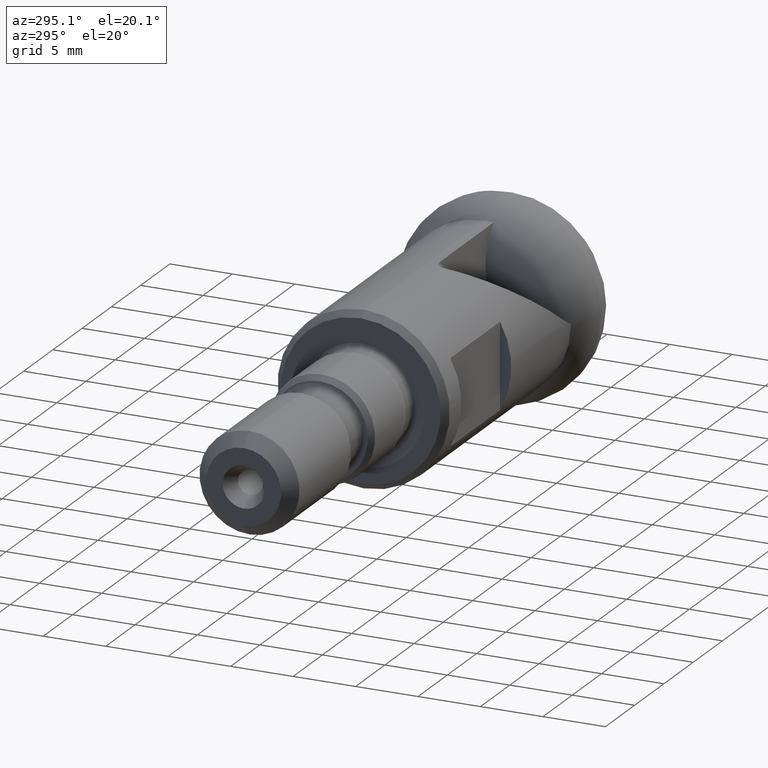
[diagram: clean part render]
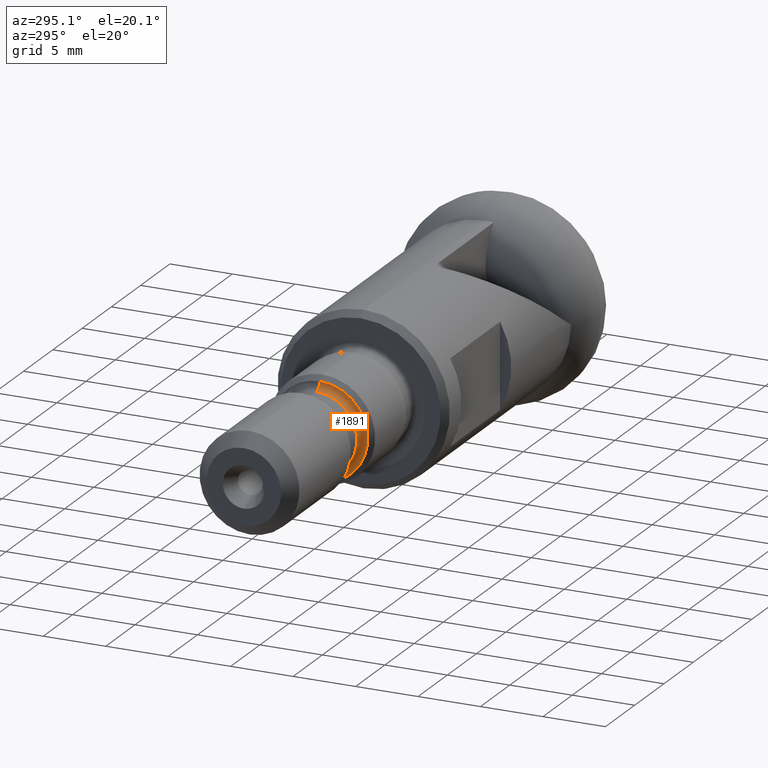
[diagram: same view with one face highlighted and labeled with its STEP entity id]
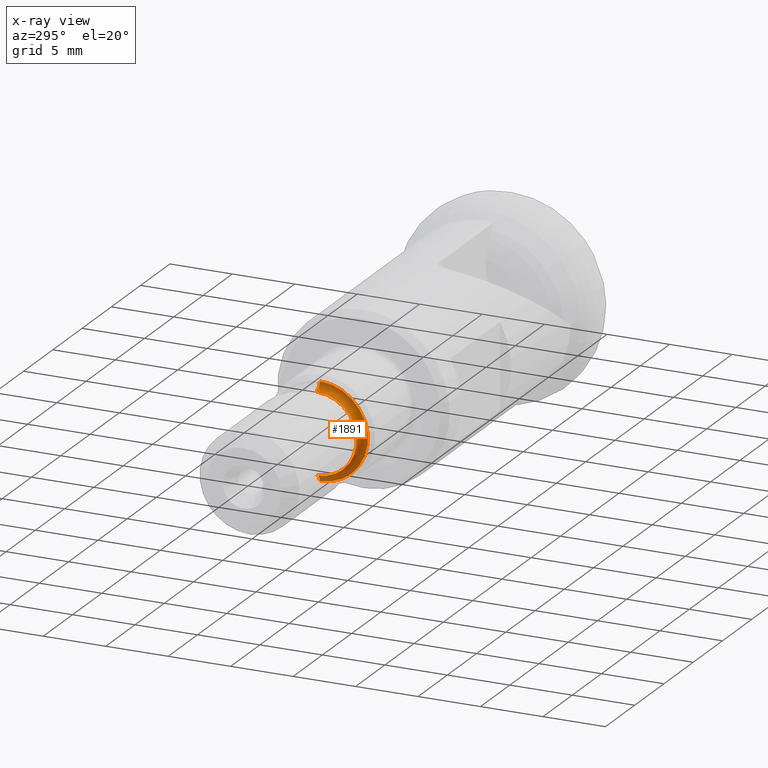
[diagram: x-ray of the same camera — body ghosted, the highlighted face saturated]
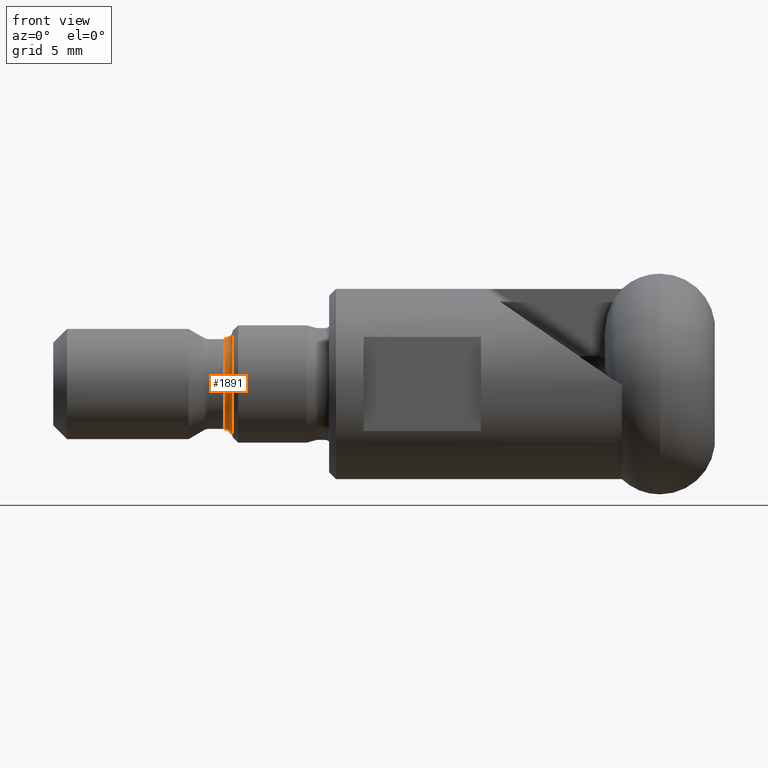
[diagram: same view with one face highlighted and labeled with its STEP entity id]
A machine part, auxiliary view. The second image highlights one B-rep face of the part: STEP entity #1891.
The next image is the same camera in x-ray: the body ghosted, the highlighted face saturated — about 7% of this face is hidden behind the body in this view.
A second angle (front view) of the same face is appended — the face is thin or edge-on in the first view.
In plain terms, the highlighted toroidal blend (fillet) surface has major radius 3.85 mm and minor (blend) radius 0.6 mm.
Its self-contained STEP definition (entity closure, byte-faithful):
#22 = CIRCLE ( 'NONE', #1842, 3.849999999999986300 ) ;
#246 = VERTEX_POINT ( 'NONE', #1383 ) ;
#258 = ORIENTED_EDGE ( 'NONE', *, *, #1936, .T. ) ;
#282 = CARTESIAN_POINT ( 'NONE',  ( -34.70000000000002400, 0.0000000000000000000, -3.249999999999989800 ) ) ;
#402 = ORIENTED_EDGE ( 'NONE', *, *, #1700, .T. ) ;
#420 = VERTEX_POINT ( 'NONE', #1452 ) ;
#561 = CARTESIAN_POINT ( 'NONE',  ( -34.70000000000002400, 0.0000000000000000000, 0.0000000000000000000 ) ) ;
#580 = CIRCLE ( 'NONE', #1284, 0.6000000000000015300 ) ;
#598 = CARTESIAN_POINT ( 'NONE',  ( -34.70000000000002400, 4.714890176717298700E-016, 3.849999999999991700 ) ) ;
#603 = DIRECTION ( 'NONE',  ( 0.0000000000000000000, 1.000000000000000000, -1.224646799147353200E-016 ) ) ;
#619 = AXIS2_PLACEMENT_3D ( 'NONE', #1427, #2255, #997 ) ;
#621 = EDGE_CURVE ( 'NONE', #1505, #1091, #1094, .T. ) ;
#630 = DIRECTION ( 'NONE',  ( 0.0000000000000000000, 1.224646799147353200E-016, 1.000000000000000000 ) ) ;
#705 = TOROIDAL_SURFACE ( 'NONE', #1158, 3.849999999999991700, 0.6000000000000015300 ) ;
#997 = DIRECTION ( 'NONE',  ( 0.0000000000000000000, 0.0000000000000000000, -1.000000000000000000 ) ) ;
#1091 = VERTEX_POINT ( 'NONE', #282 ) ;
#1094 = CIRCLE ( 'NONE', #2296, 0.6000000000000015300 ) ;
#1135 = DIRECTION ( 'NONE',  ( 0.0000000000000000000, 0.0000000000000000000, -1.000000000000000000 ) ) ;
#1158 = AXIS2_PLACEMENT_3D ( 'NONE', #561, #2076, #1834 ) ;
#1269 = DIRECTION ( 'NONE',  ( 0.0000000000000000000, 0.0000000000000000000, -1.000000000000000000 ) ) ;
#1284 = AXIS2_PLACEMENT_3D ( 'NONE', #598, #603, #630 ) ;
#1383 = CARTESIAN_POINT ( 'NONE',  ( -34.70000000000002400, 4.347496136973089100E-016, 3.249999999999989800 ) ) ;
#1427 = CARTESIAN_POINT ( 'NONE',  ( -34.70000000000002400, 0.0000000000000000000, 0.0000000000000000000 ) ) ;
#1452 = CARTESIAN_POINT ( 'NONE',  ( -34.10000000000002300, 4.959819536546769800E-016, 3.849999999999986300 ) ) ;
#1505 = VERTEX_POINT ( 'NONE', #2325 ) ;
#1530 = CARTESIAN_POINT ( 'NONE',  ( -34.70000000000002400, 0.0000000000000000000, -3.849999999999991700 ) ) ;
#1551 = DIRECTION ( 'NONE',  ( -0.0000000000000000000, -1.000000000000000000, -0.0000000000000000000 ) ) ;
#1662 = CARTESIAN_POINT ( 'NONE',  ( -34.10000000000002300, 0.0000000000000000000, 0.0000000000000000000 ) ) ;
#1680 = ORIENTED_EDGE ( 'NONE', *, *, #621, .F. ) ;
#1700 = EDGE_CURVE ( 'NONE', #420, #246, #580, .T. ) ;
#1740 = ORIENTED_EDGE ( 'NONE', *, *, #2195, .F. ) ;
#1745 = EDGE_LOOP ( 'NONE', ( #1740, #402, #258, #1680 ) ) ;
#1834 = DIRECTION ( 'NONE',  ( 0.0000000000000000000, 0.0000000000000000000, -1.000000000000000000 ) ) ;
#1842 = AXIS2_PLACEMENT_3D ( 'NONE', #1662, #2300, #1269 ) ;
#1891 = ADVANCED_FACE ( 'NONE', ( #2520 ), #705, .F. ) ;
#1936 = EDGE_CURVE ( 'NONE', #246, #1091, #2495, .T. ) ;
#2076 = DIRECTION ( 'NONE',  ( 1.000000000000000000, -0.0000000000000000000, -0.0000000000000000000 ) ) ;
#2195 = EDGE_CURVE ( 'NONE', #420, #1505, #22, .T. ) ;
#2255 = DIRECTION ( 'NONE',  ( 1.000000000000000000, -0.0000000000000000000, -0.0000000000000000000 ) ) ;
#2296 = AXIS2_PLACEMENT_3D ( 'NONE', #1530, #1551, #1135 ) ;
#2300 = DIRECTION ( 'NONE',  ( 1.000000000000000000, -0.0000000000000000000, -0.0000000000000000000 ) ) ;
#2325 = CARTESIAN_POINT ( 'NONE',  ( -34.10000000000002300, 0.0000000000000000000, -3.849999999999986300 ) ) ;
#2495 = CIRCLE ( 'NONE', #619, 3.249999999999989800 ) ;
#2520 = FACE_OUTER_BOUND ( 'NONE', #1745, .T. ) ;